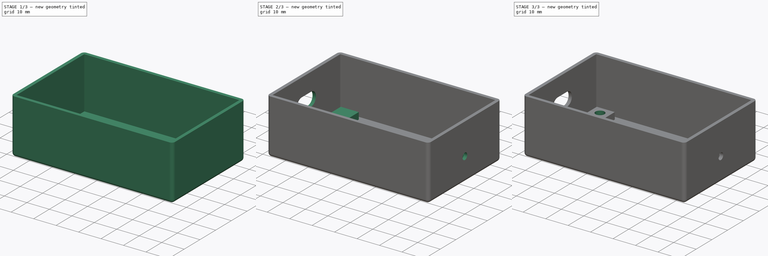
[diagram: build sequence overview — one tinted view per stage of 3, left to right]
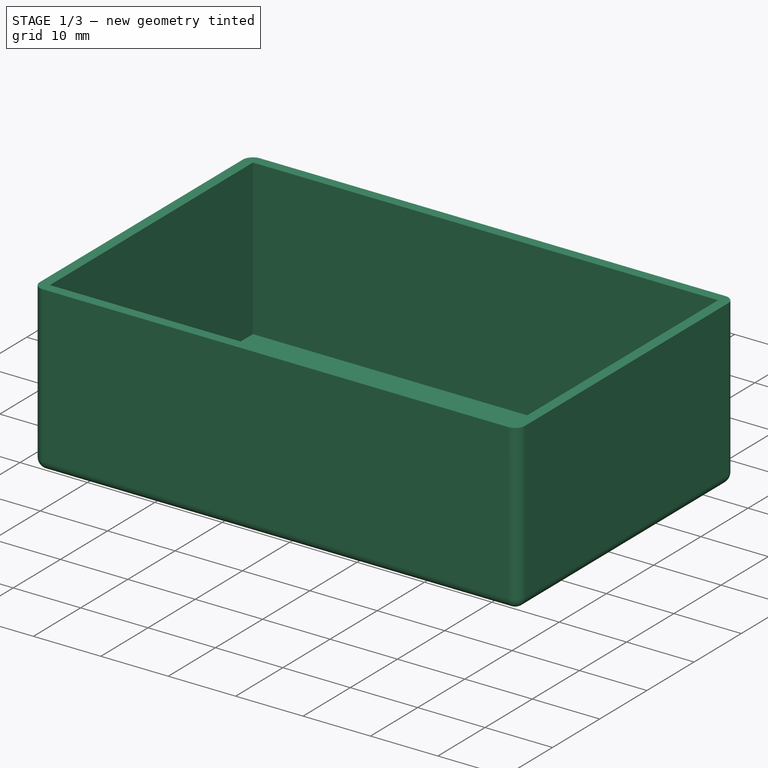
[diagram: stage 1 of 3 — iso view after this stage's code; geometry added in this stage tinted green]
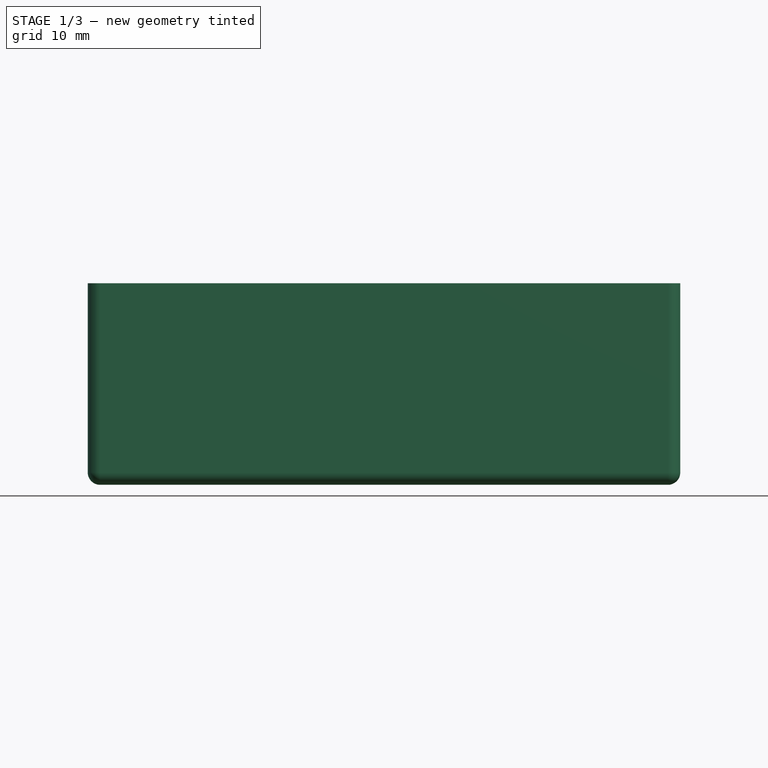
[diagram: stage 1 of 3 — front view after this stage's code; geometry added in this stage tinted green]
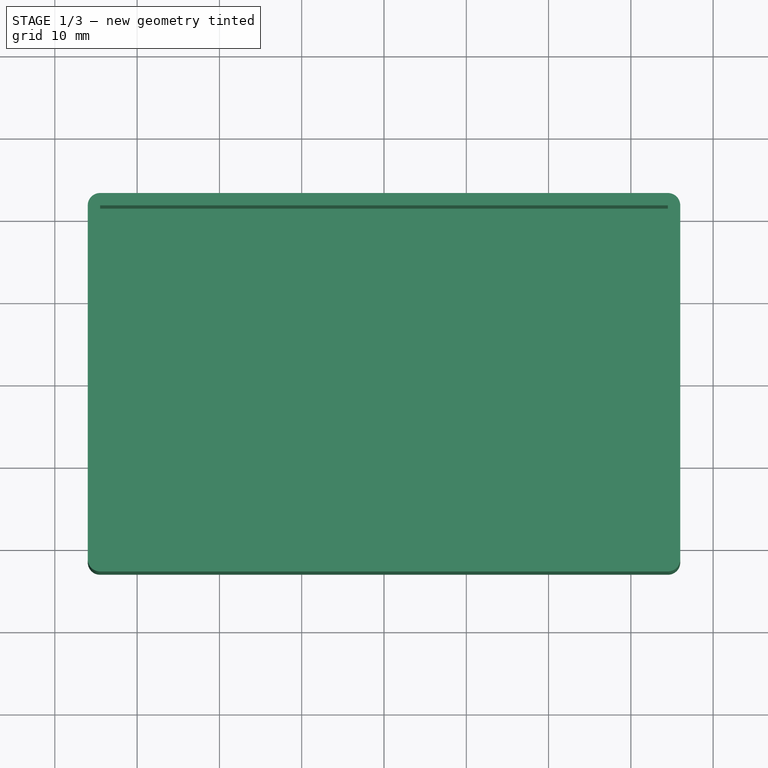
[diagram: stage 1 of 3 — top view after this stage's code; geometry added in this stage tinted green]
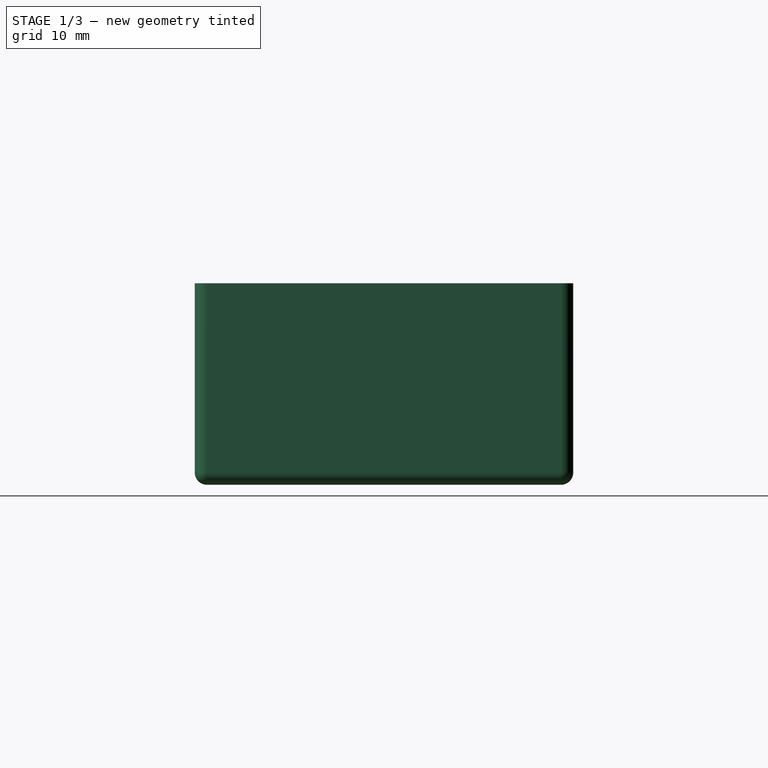
[diagram: stage 1 of 3 — right view after this stage's code; geometry added in this stage tinted green]
FCSTD DOCUMENT  (FreeCAD 0.19R23141 (Git))
Label: Case Bottom
License: All rights reserved
LicenseURL: http://en.wikipedia.org/wiki/All_rights_reserved
objects: Sketcher::SketchObject×6, PartDesign::Pad×2, PartDesign::Hole×2, PartDesign::Pocket×2, PartDesign::Thickness×1, PartDesign::Body×1
note: 21 computed .brp shape members not serialized (recipe doc carries the construction recipe); baked Part::Feature solids carry a one-line shape summary decoded from their .brp

FEATURE [Sketcher::SketchObject] Sketch  label="Main Body"
  MapMode = 5
  Support = -> [XY_Plane]
  sketch-geometry (4):
    g0: LineSegment StartX=-34.5 StartY=21.5 StartZ=0 EndX=34.5 EndY=21.5 EndZ=0
    g1: LineSegment StartX=34.5 StartY=21.5 StartZ=0 EndX=34.5 EndY=-21.5 EndZ=0
    g2: LineSegment StartX=34.5 StartY=-21.5 StartZ=0 EndX=-34.5 EndY=-21.5 EndZ=0
    g3: LineSegment StartX=-34.5 StartY=-21.5 StartZ=0 EndX=-34.5 EndY=21.5 EndZ=0
  constraints (10):
    c: Coincident(g0,g1)
    c: Coincident(g1,g2)
    c: Coincident(g2,g3)
    c: Coincident(g3,g0)
    c: Horizontal(g2)
    c: Vertical(g3)
    c: DistanceX(g0,g0) = 69
    c: DistanceY(g1,g1) = 43
    c: Symmetric(g0,g1,g-1)
    c: Symmetric(g0,g0,g-2)
FEATURE [PartDesign::Pad] Pad
  AllowMultiFace = false
  Direction = (1,1,1)
  Length = 23
  Length2 = 100
  Profile = -> Sketch
  Type = 0
FEATURE [PartDesign::Thickness] Thickness
  Base = -> Pad [Face6]
  BaseFeature = -> Pad
  Intersection = false
  Join = 0
  Mode = 0
  SupportTransform = false
  Value = 1.5
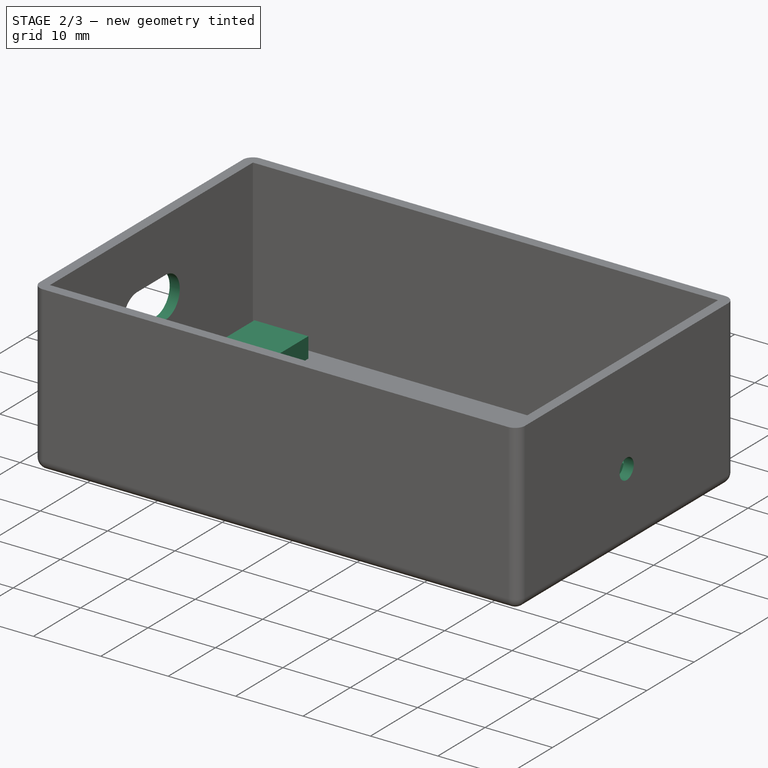
[diagram: stage 2 of 3 — iso view after this stage's code; geometry added in this stage tinted green]
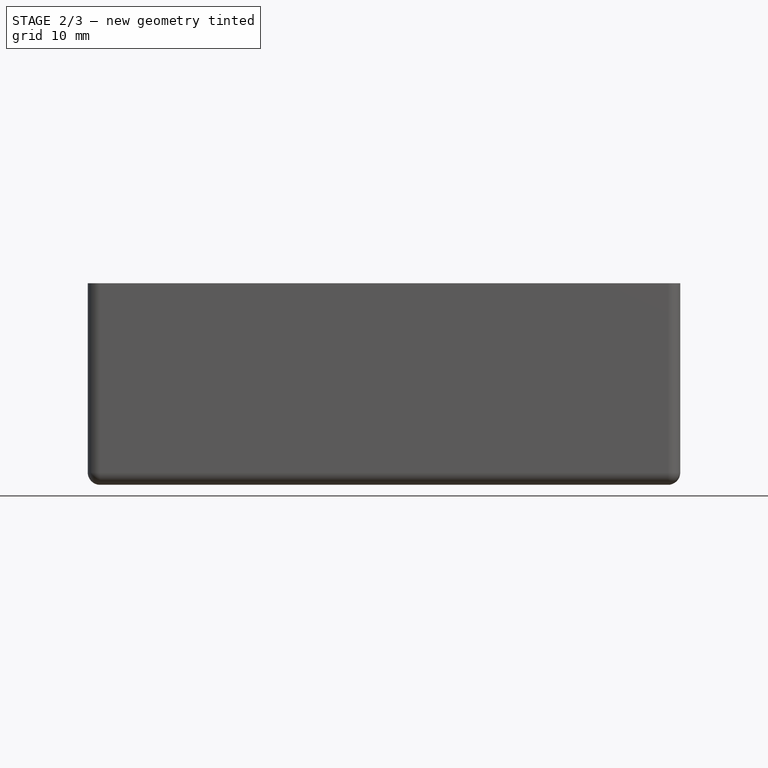
[diagram: stage 2 of 3 — front view after this stage's code; geometry added in this stage tinted green]
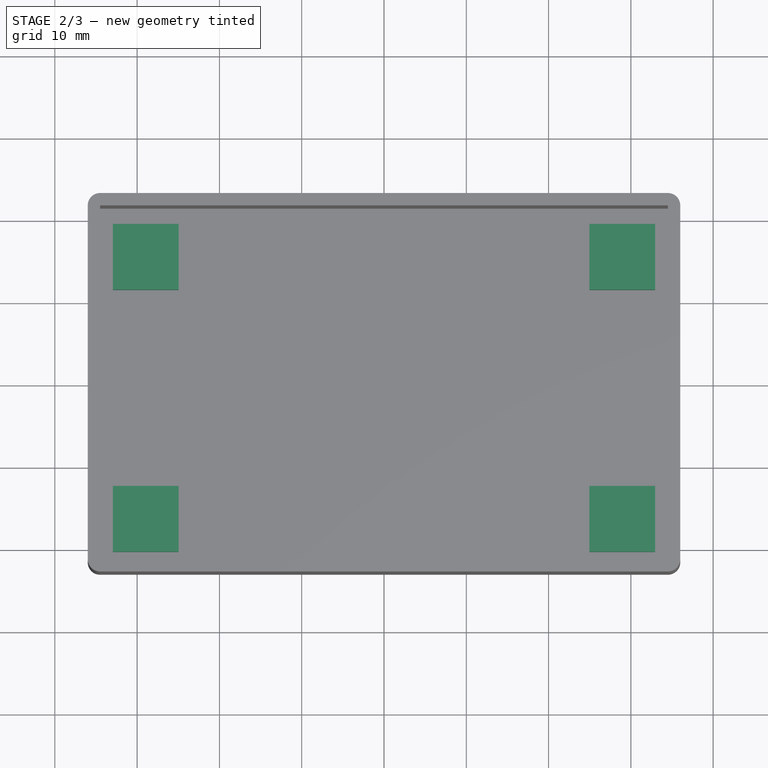
[diagram: stage 2 of 3 — top view after this stage's code; geometry added in this stage tinted green]
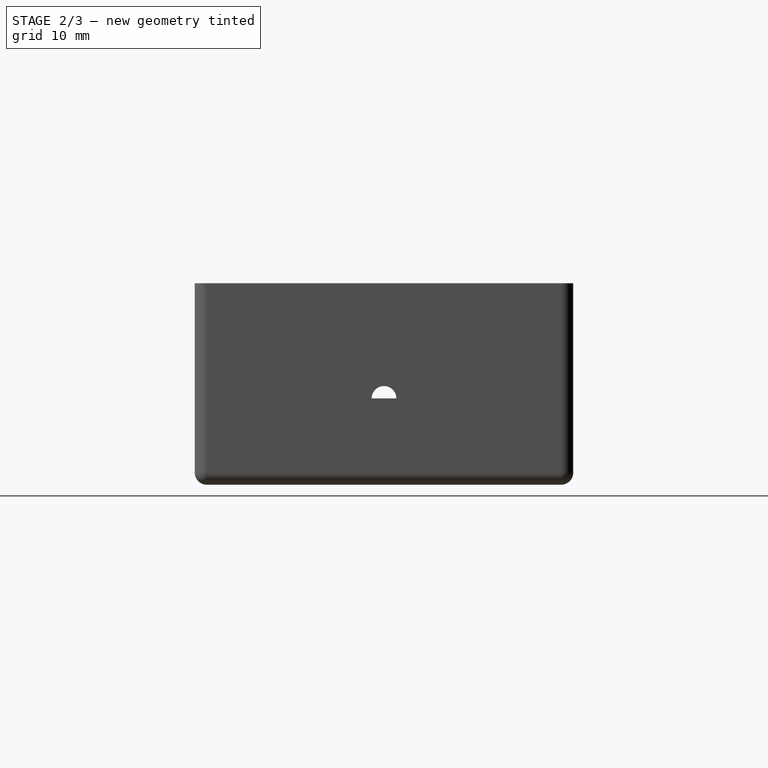
[diagram: stage 2 of 3 — right view after this stage's code; geometry added in this stage tinted green]
FEATURE [Sketcher::SketchObject] Sketch001  label="Round Hole"
  ExternalGeometry = -> [Thickness]
  MapMode = 5
  Placement = pos=(36,0,0) rot=(0.57735,0.57735,0.57735;2.0944rad)
  Support = -> [Thickness]
  sketch-geometry (1):
    g0: Circle CenterX=-2e-16 CenterY=9 CenterZ=0 NormalX=0 NormalY=0 NormalZ=1 AngleXU=0 Radius=5
  constraints (3):
    c: Diameter(g0) = 10
    c: DistanceX(g-3,g0) = 23
    c: DistanceY(g-1,g0) = 9
FEATURE [PartDesign::Hole] Hole
  AllowMultiFace = false
  BaseFeature = -> Thickness
  Depth = 3
  DepthType = 0
  Diameter = 3
  DrillPoint = 1
  DrillPointAngle = 118
  HoleCutCountersinkAngle = 90
  HoleCutDepth = 0
  HoleCutDiameter = 0
  HoleCutType = 0
  ModelActualThread = false
  Profile = -> Sketch001
  Tapered = false
  TaperedAngle = 90
  ThreadAngle = 0
  ThreadClass = 0
  ThreadCutOffInner = 0
  ThreadCutOffOuter = 0
  ThreadDirection = 0
  ThreadFit = 0
  ThreadPitch = 0
  ThreadSize = 0
  ThreadType = 0
  Threaded = false
FEATURE [Sketcher::SketchObject] Sketch002  label="Oval Hole"
  ExternalGeometry = -> [Hole]
  MapMode = 5
  Placement = pos=(-36,0,0) rot=(0.57735,-0.57735,-0.57735;2.0944rad)
  Support = -> [Hole]
  sketch-geometry (4):
    g0: ArcOfCircle CenterX=-3 CenterY=12 CenterZ=0 NormalX=0 NormalY=0 NormalZ=1 AngleXU=0 Radius=3 StartAngle=1.5708 EndAngle=4.71239
    g1: ArcOfCircle CenterX=3 CenterY=12 CenterZ=0 NormalX=0 NormalY=0 NormalZ=1 AngleXU=0 Radius=3 StartAngle=4.71239 EndAngle=7.85398
    g2: LineSegment StartX=-3 StartY=9 StartZ=0 EndX=3 EndY=9 EndZ=0
    g3: LineSegment StartX=-3 StartY=15 StartZ=0 EndX=3 EndY=15 EndZ=0
  constraints (11):
    c: Tangent(g0,g3)
    c: Tangent(g0,g2)
    c: Tangent(g2,g1)
    c: Tangent(g3,g1)
    c: Horizontal(g2)
    c: Equal(g0,g1)
    c: DistanceX(g0,g1) = 6
    c: DistanceY(g1,g1) = 6
    c: DistanceX(g-3,g0) = 20
    c: DistanceX(g-3,g-4) = 46
    c: DistanceY(g-3,g0) = 9
FEATURE [PartDesign::Pocket] Pocket
  AllowMultiFace = false
  BaseFeature = -> Hole
  Length = 5
  Length2 = 100
  Profile = -> Sketch002
  Type = 0
FEATURE [Sketcher::SketchObject] Sketch003  label="Stand Offs 2-D"
  ExternalGeometry = -> [Pocket]
  MapMode = 5
  Support = -> [Pocket]
  sketch-geometry (16):
    g0: LineSegment StartX=-32.95 StartY=19.6 StartZ=0 EndX=-24.95 EndY=19.6 EndZ=0
    g1: LineSegment StartX=-24.95 StartY=19.6 StartZ=0 EndX=-24.95 EndY=11.6 EndZ=0
    g2: LineSegment StartX=-24.95 StartY=11.6 StartZ=0 EndX=-32.95 EndY=11.6 EndZ=0
    g3: LineSegment StartX=-32.95 StartY=11.6 StartZ=0 EndX=-32.95 EndY=19.6 EndZ=0
    g4: LineSegment StartX=24.95 StartY=19.6 StartZ=0 EndX=32.95 EndY=19.6 EndZ=0
    g5: LineSegment StartX=32.95 StartY=19.6 StartZ=0 EndX=32.95 EndY=11.6 EndZ=0
    g6: LineSegment StartX=32.95 StartY=11.6 StartZ=0 EndX=24.95 EndY=11.6 EndZ=0
    g7: LineSegment StartX=24.95 StartY=11.6 StartZ=0 EndX=24.95 EndY=19.6 EndZ=0
    g8: LineSegment StartX=-32.95 StartY=-12.25 StartZ=0 EndX=-24.95 EndY=-12.25 EndZ=0
    g9: LineSegment StartX=-24.95 StartY=-12.25 StartZ=0 EndX=-24.95 EndY=-20.25 EndZ=0
    g10: LineSegment StartX=-24.95 StartY=-20.25 StartZ=0 EndX=-32.95 EndY=-20.25 EndZ=0
    g11: LineSegment StartX=-32.95 StartY=-20.25 StartZ=0 EndX=-32.95 EndY=-12.25 EndZ=0
    g12: LineSegment StartX=24.95 StartY=-12.25 StartZ=0 EndX=32.95 EndY=-12.25 EndZ=0
    g13: LineSegment StartX=32.95 StartY=-12.25 StartZ=0 EndX=32.95 EndY=-20.25 EndZ=0
    g14: LineSegment StartX=32.95 StartY=-20.25 StartZ=0 EndX=24.95 EndY=-20.25 EndZ=0
    g15: LineSegment StartX=24.95 StartY=-20.25 StartZ=0 EndX=24.95 EndY=-12.25 EndZ=0
  constraints (45):
    c: Coincident(g0,g1)
    c: Coincident(g1,g2)
    c: Coincident(g2,g3)
    c: Coincident(g3,g0)
    c: Horizontal(g0)
    c: Horizontal(g2)
    c: Vertical(g1)
    c: Vertical(g3)
    c: DistanceY(g1,g0) = 8
    c: DistanceX(g2,g2) = 8
    c: Coincident(g4,g5)
    c: Coincident(g5,g6)
    c: Coincident(g6,g7)
    c: Coincident(g7,g4)
    c: Horizontal(g4)
    c: Horizontal(g6)
    c: Vertical(g5)
    c: Vertical(g7)
    c: DistanceY(g5,g4) = 8
    c: Equal(g2,g6) = 7.5
    c: Coincident(g8,g9)
    c: Coincident(g9,g10)
    c: Coincident(g10,g11)
    c: Coincident(g11,g8)
    c: Horizontal(g8)
    c: Horizontal(g10)
    c: Vertical(g9)
    c: Vertical(g11)
    c: DistanceY(g9,g8) = 8
    c: Equal(g2,g10) = 7.5
    c: Coincident(g12,g13)
    c: Coincident(g13,g14)
    c: Coincident(g14,g15)
    c: Coincident(g15,g12)
    c: Horizontal(g12)
    c: Horizontal(g14)
    c: Vertical(g13)
    c: Vertical(g15)
    c: DistanceY(g13,g12) = 8
    c: Equal(g2,g14) = 7.5
    c: DistanceX(g0,g4) = 57.9
    c: DistanceY(g10,g2) = 31.85
    c: DistanceY(g13,g5) = 31.85
    c: DistanceX(g8,g12) = 57.9
    c: DistanceX(g-5) = 36
FEATURE [PartDesign::Pad] Pad001
  AllowMultiFace = false
  BaseFeature = -> Pocket
  Direction = (1,1,1)
  Length = 3
  Length2 = 100
  Profile = -> Sketch003
  Type = 0
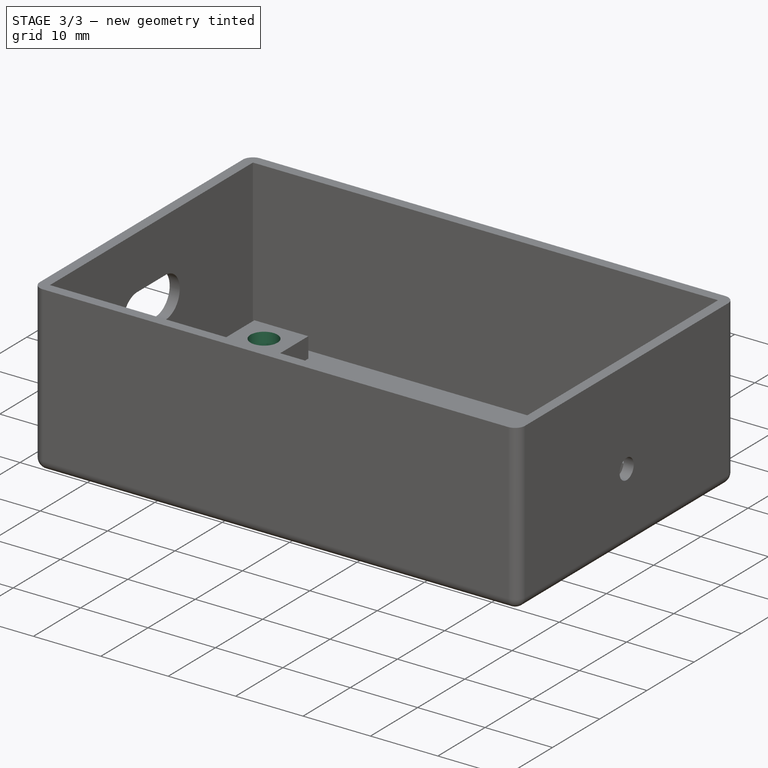
[diagram: stage 3 of 3 — iso view after this stage's code; geometry added in this stage tinted green]
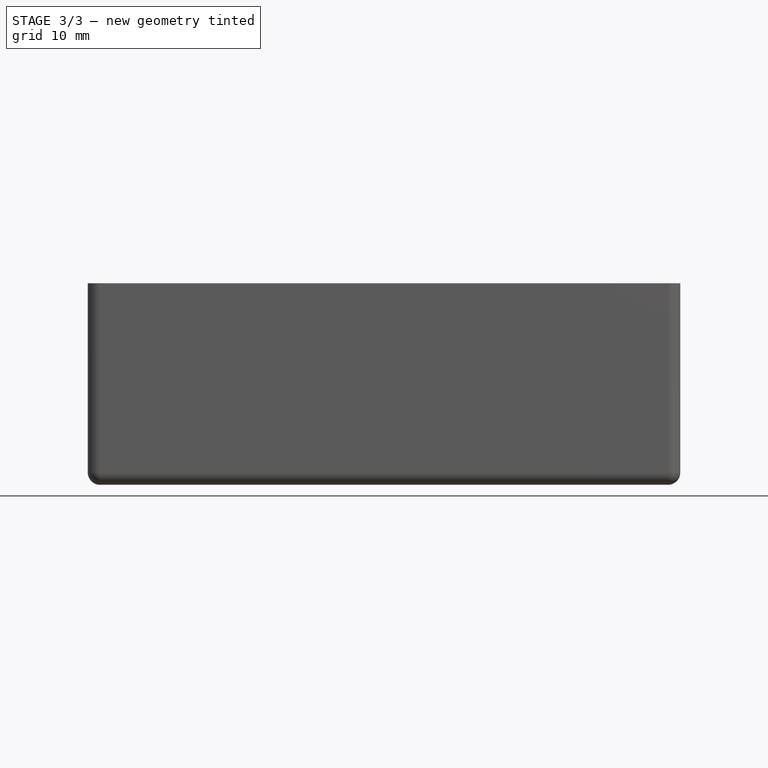
[diagram: stage 3 of 3 — front view after this stage's code; geometry added in this stage tinted green]
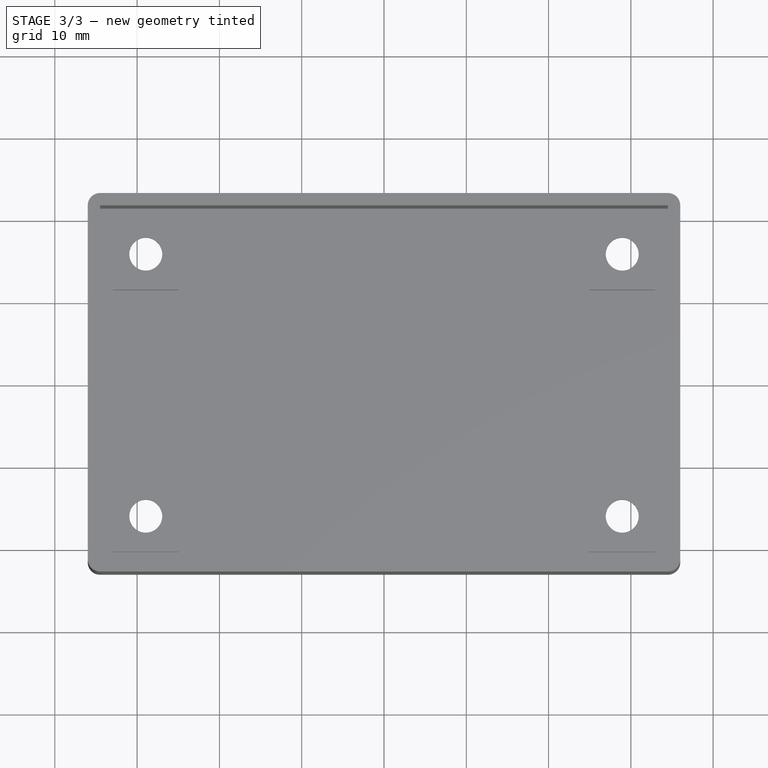
[diagram: stage 3 of 3 — top view after this stage's code; geometry added in this stage tinted green]
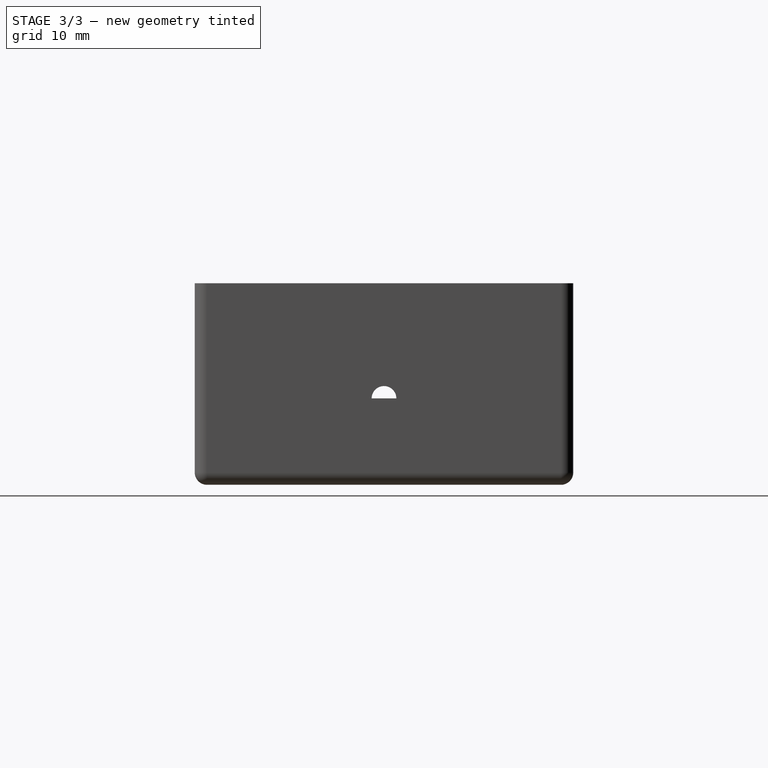
[diagram: stage 3 of 3 — right view after this stage's code; geometry added in this stage tinted green]
FEATURE [Sketcher::SketchObject] Sketch004  label="Holes in Standoffs"
  ExternalGeometry = -> [Pad001]
  MapMode = 5
  Placement = pos=(0,0,3) rot=(0,0,1;0rad)
  Support = -> [Pad001]
  sketch-geometry (4):
    g0: Circle CenterX=-28.95 CenterY=15.925 CenterZ=0 NormalX=0 NormalY=0 NormalZ=1 AngleXU=0 Radius=2.5
    g1: Circle CenterX=28.95 CenterY=15.92 CenterZ=0 NormalX=0 NormalY=0 NormalZ=1 AngleXU=0 Radius=2.5
    g2: Circle CenterX=-28.95 CenterY=-15.925 CenterZ=0 NormalX=0 NormalY=0 NormalZ=1 AngleXU=0 Radius=2.5
    g3: Circle CenterX=28.95 CenterY=-15.93 CenterZ=0 NormalX=0 NormalY=0 NormalZ=1 AngleXU=0 Radius=2.5
  constraints (12):
    c: DistanceX(g2,g3) = 57.9
    c: DistanceY(g2,g0) = 31.85
    c: DistanceY(g3,g1) = 31.85
    c: DistanceX(g1,g-17) = 4
    c: Diameter(g0) = 5
    c: Diameter(g2) = 5
    c: Diameter(g1) = 5
    c: DistanceY(g0,g-12) = 7.075
    c: DistanceY(g-14,g3) = 7.07
    c: Diameter(g3) = 5
    c: DistanceX(g0,g1) = 57.9
    c: DistanceX(g-19,g3) = 4
FEATURE [PartDesign::Hole] Hole001
  AllowMultiFace = false
  BaseFeature = -> Pad001
  Depth = 6
  DepthType = 0
  Diameter = 4
  DrillPoint = 1
  DrillPointAngle = 118
  HoleCutCountersinkAngle = 90
  HoleCutDepth = 0
  HoleCutDiameter = 0
  HoleCutType = 0
  ModelActualThread = false
  Profile = -> Sketch004
  Tapered = false
  TaperedAngle = 90
  ThreadAngle = 0
  ThreadClass = 0
  ThreadCutOffInner = 0
  ThreadCutOffOuter = 0
  ThreadDirection = 0
  ThreadFit = 0
  ThreadPitch = 0
  ThreadSize = 0
  ThreadType = 0
  Threaded = false
FEATURE [Sketcher::SketchObject] Sketch005  label="Nut Receoticals"
  ExternalGeometry = -> [Hole001]
  MapMode = 5
  Placement = pos=(0,0,-1.5) rot=(1,0,0;3.14159rad)
  Support = -> [Hole001]
  sketch-geometry (28):
    g0: LineSegment StartX=-27.2068 StartY=12.885 StartZ=0 EndX=-25.45 EndY=15.9122 EndZ=0
    g1: LineSegment StartX=-25.45 StartY=15.9122 StartZ=0 EndX=-27.1932 EndY=18.9472 EndZ=0
    g2: LineSegment StartX=-27.1932 StartY=18.9472 StartZ=0 EndX=-30.6932 EndY=18.955 EndZ=0
    g3: LineSegment StartX=-30.6932 StartY=18.955 StartZ=0 EndX=-32.45 EndY=15.9278 EndZ=0
    g4: LineSegment StartX=-32.45 StartY=15.9278 StartZ=0 EndX=-30.7068 EndY=12.8928 EndZ=0
    g5: LineSegment StartX=-30.7068 StartY=12.8928 StartZ=0 EndX=-27.2068 EndY=12.885 EndZ=0
    g6: Circle [constr] CenterX=-28.95 CenterY=15.92 CenterZ=0 NormalX=0 NormalY=0 NormalZ=1 AngleXU=0 Radius=3.5
    g7: LineSegment StartX=30.6932 StartY=12.89 StartZ=0 EndX=32.45 EndY=15.9172 EndZ=0
    g8: LineSegment StartX=32.45 StartY=15.9172 StartZ=0 EndX=30.7068 EndY=18.9522 EndZ=0
    g9: LineSegment StartX=30.7068 StartY=18.9522 StartZ=0 EndX=27.2068 EndY=18.96 EndZ=0
    g10: LineSegment StartX=27.2068 StartY=18.96 StartZ=0 EndX=25.45 EndY=15.9328 EndZ=0
    g11: LineSegment StartX=25.45 StartY=15.9328 StartZ=0 EndX=27.1932 EndY=12.8978 EndZ=0
    g12: LineSegment StartX=27.1932 StartY=12.8978 StartZ=0 EndX=30.6932 EndY=12.89 EndZ=0
    g13: Circle [constr] CenterX=28.95 CenterY=15.925 CenterZ=0 NormalX=0 NormalY=0 NormalZ=1 AngleXU=0 Radius=3.5
    g14: LineSegment StartX=-27.2068 StartY=-18.965 StartZ=0 EndX=-25.45 EndY=-15.9378 EndZ=0
    g15: LineSegment StartX=-25.45 StartY=-15.9378 StartZ=0 EndX=-27.1932 EndY=-12.9028 EndZ=0
    g16: LineSegment StartX=-27.1932 StartY=-12.9028 StartZ=0 EndX=-30.6932 EndY=-12.895 EndZ=0
    g17: LineSegment StartX=-30.6932 StartY=-12.895 StartZ=0 EndX=-32.45 EndY=-15.9222 EndZ=0
    g18: LineSegment StartX=-32.45 StartY=-15.9222 StartZ=0 EndX=-30.7068 EndY=-18.9572 EndZ=0
    g19: LineSegment StartX=-30.7068 StartY=-18.9572 StartZ=0 EndX=-27.2068 EndY=-18.965 EndZ=0
    g20: Circle [constr] CenterX=-28.95 CenterY=-15.93 CenterZ=0 NormalX=0 NormalY=0 NormalZ=1 AngleXU=0 Radius=3.5
    g21: LineSegment StartX=30.6932 StartY=-18.96 StartZ=0 EndX=32.45 EndY=-15.9328 EndZ=0
    g22: LineSegment StartX=32.45 StartY=-15.9328 StartZ=0 EndX=30.7068 EndY=-12.8978 EndZ=0
    g23: LineSegment StartX=30.7068 StartY=-12.8978 StartZ=0 EndX=27.2068 EndY=-12.89 EndZ=0
    g24: LineSegment StartX=27.2068 StartY=-12.89 StartZ=0 EndX=25.45 EndY=-15.9172 EndZ=0
    g25: LineSegment StartX=25.45 StartY=-15.9172 StartZ=0 EndX=27.1932 EndY=-18.9522 EndZ=0
    g26: LineSegment StartX=27.1932 StartY=-18.9522 StartZ=0 EndX=30.6932 EndY=-18.96 EndZ=0
    g27: Circle [constr] CenterX=28.95 CenterY=-15.925 CenterZ=0 NormalX=0 NormalY=0 NormalZ=1 AngleXU=0 Radius=3.5
  constraints (69):
    c: Coincident(g0,g1)
    c: Coincident(g1,g2)
    c: Coincident(g2,g3)
    c: Coincident(g3,g4)
    c: Coincident(g4,g5)
    c: Coincident(g5,g0)
    c: Equal(g0, g1-g5) x5
    c: PointOnObject(g0,g6)
    c: PointOnObject(g1,g6)
    c: PointOnObject(g2,g6)
    c: PointOnObject(g3,g6)
    c: PointOnObject(g4,g6)
    c: PointOnObject(g5,g6)
    c: Diameter(g6) = 7
    c: Coincident(g7,g8)
    c: Coincident(g8,g9)
    c: Coincident(g9,g10)
    c: Coincident(g10,g11)
    c: Coincident(g11,g12)
    c: Coincident(g12,g7)
    c: Equal(g7, g8-g12) x5
    c: PointOnObject(g7,g13)
    c: PointOnObject(g8,g13)
    c: PointOnObject(g9,g13)
    c: PointOnObject(g10,g13)
    c: PointOnObject(g11,g13)
    c: PointOnObject(g12,g13)
    c: Equal(g6,g13) = 7
    c: Coincident(g14,g15)
    c: Coincident(g15,g16)
    c: Coincident(g16,g17)
    c: Coincident(g17,g18)
    c: Coincident(g18,g19)
    c: Coincident(g19,g14)
    c: Equal(g14, g15-g19) x5
    c: PointOnObject(g14,g20)
    c: PointOnObject(g15,g20)
    c: PointOnObject(g16,g20)
    c: PointOnObject(g17,g20)
    c: PointOnObject(g18,g20)
    c: PointOnObject(g19,g20)
    c: Coincident(g21,g22)
    c: Coincident(g22,g23)
    c: Coincident(g23,g24)
    c: Coincident(g24,g25)
    c: Coincident(g25,g26)
    c: Coincident(g26,g21)
    c: Equal(g21, g22-g26) x5
    c: PointOnObject(g21,g27)
    c: PointOnObject(g22,g27)
    c: PointOnObject(g23,g27)
    c: PointOnObject(g24,g27)
    c: PointOnObject(g25,g27)
    c: PointOnObject(g26,g27)
    c: Equal(g6,g27) = 7
    c: DistanceY(g13,g-4) = 7.075
    c: DistanceX(g6,g13) = 57.9
    c: DistanceX(g20,g27) = 57.9
    c: DistanceY(g20,g6) = 31.85
    c: DistanceY(g27,g13) = 31.85
    c: DistanceY(g6,g-4) = 7.08
    c: DistanceX(g-3,g20) = 7.05
    c: DistanceX(g-3,g-5) = 72
    c: Diameter(g20) = 7
    c: Parallel(g4,g15)
    c: Parallel(g0,g10)
    c: Parallel(g24,g14)
    c: DistanceY(g7,g-4) = 10.11
    c: DistanceX(g-3,g6) = 7.05
FEATURE [PartDesign::Pocket] Pocket001
  AllowMultiFace = false
  BaseFeature = -> Hole001
  Length = 3
  Length2 = 100
  Profile = -> Sketch005
  Type = 0
FEATURE [PartDesign::Body] Body
  Group = -> [Sketch,Pad,Thickness,Sketch001,Hole,Sketch002,Pocket,Sketch003,Pad001,Sketch004,Hole001,Sketch005,Pocket001]
  Origin = -> Origin
  Tip = -> Pocket001
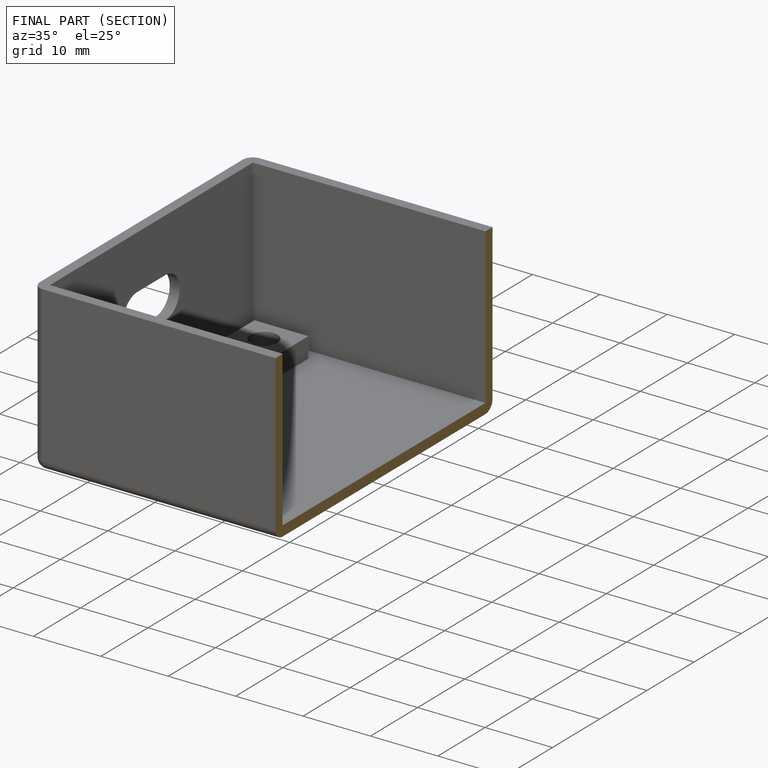
[diagram: finished part — half-section view (interior)]
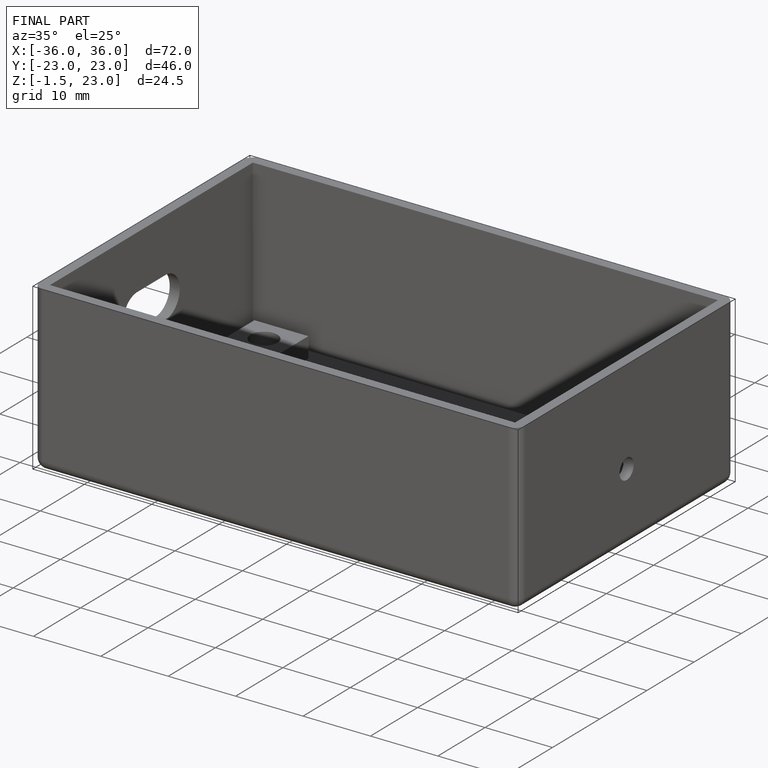
[diagram: finished part — iso view with bounding-box wireframe]
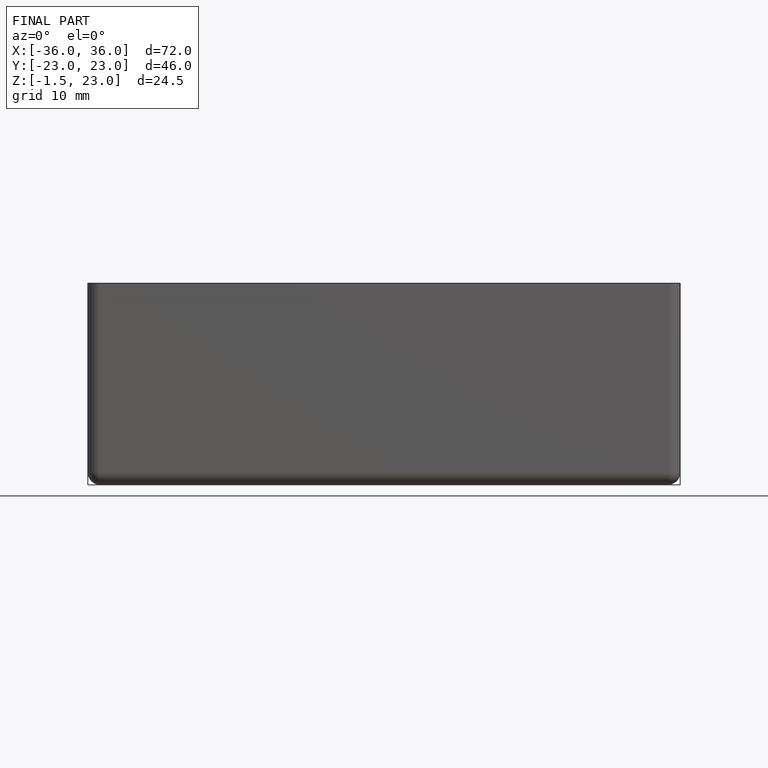
[diagram: finished part — front view with bounding-box wireframe]
